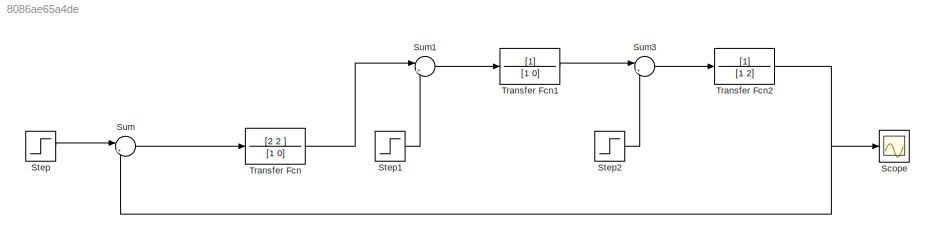
MODEL slx_8086ae65a4de
KIND model
CONFIG AbsTol = auto
CONFIG EnableMultiTasking = off
CONFIG FixedStep = auto
CONFIG MaxStep = auto
CONFIG MinStep = auto
CONFIG RelTol = 1e-3
CONFIG SampleTimeConstraint = Unconstrained
CONFIG SolverName = ode23
CONFIG StartTime = 0.0
CONFIG StopTime = 50
BLOCK [Scope] Scope
  Floating = off
  NumInputPorts = 1
  ScopeSpecificationString = Simulink.scopes.TimeScopeBlockCfg('CurrentConfiguration', extmgr.ConfigurationSet(extmgr.Configuration('Core','General UI',true),extmgr.Configuration('Core','Source UI',true),extmgr.Configuration('Sources','WiredSimulink',true),extmgr.Configuration('Visuals','Time Domain',true,'SerializedDisplays',{struct('MinYLimReal','-0.2093','MaxYLimReal','1.88373','YLabelReal','','MinYLimMag','0.00000','MaxYL...<+1395ch>
BLOCK [Step] Step
  SampleTime = 0
BLOCK [Step] Step1
  After = 0.2
  SampleTime = 0
  Time = 25
BLOCK [Step] Step2
  After = 0.5
  SampleTime = 0
  Time = 40
BLOCK [Sum] Sum
  Inputs = |+-
BLOCK [Sum] Sum1
  Inputs = |++
BLOCK [Sum] Sum3
  Inputs = |++
BLOCK [TransferFcn] Transfer Fcn
  Denominator = [1 0]
  Numerator = [2 2 ]
BLOCK [TransferFcn] Transfer Fcn1
  Denominator = [1 0]
BLOCK [TransferFcn] Transfer Fcn2
  Denominator = [1 2]
LINE Step1:1 -> Sum1:2
LINE Step2:1 -> Sum3:2
LINE Step:1 -> Sum:1
LINE Sum1:1 -> Transfer Fcn1:1
LINE Sum3:1 -> Transfer Fcn2:1
LINE Sum:1 -> Transfer Fcn:1
LINE Transfer Fcn1:1 -> Sum3:1
NET Transfer Fcn2:1 -> Scope:1, Sum:2
LINE Transfer Fcn:1 -> Sum1:1
note: NET lines group one-source signal fan-out (src -> all destinations, sorted); 1:1 wires keep LINE
